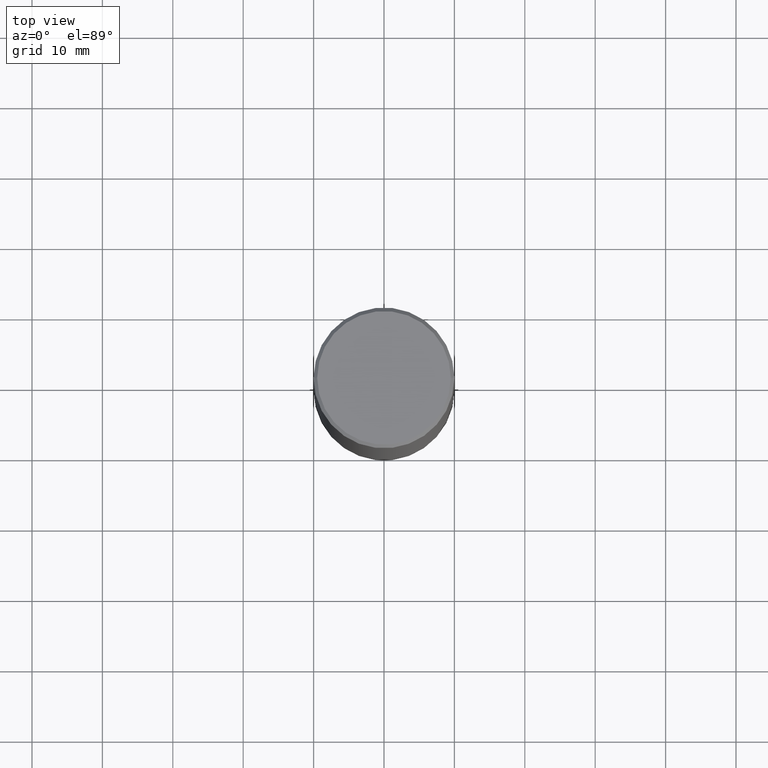
[diagram: clean part render]
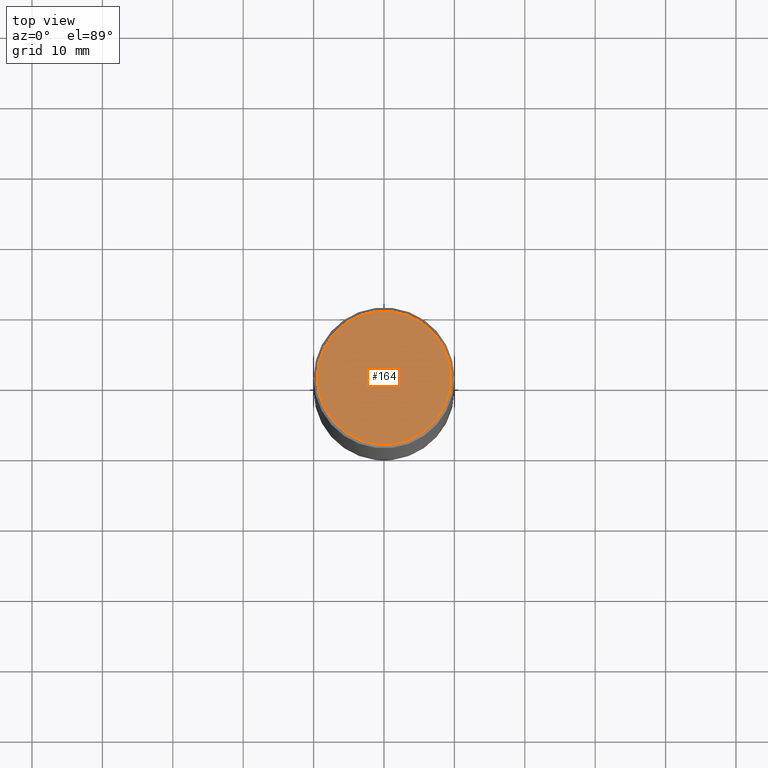
[diagram: same view with one face highlighted and labeled with its STEP entity id]
A machine part, top view. The second image highlights one B-rep face of the part: STEP entity #164.
In plain terms, the highlighted planar face has unit normal (0, -0, -1).
Its self-contained STEP definition (entity closure, byte-faithful):
#6 = PLANE ( 'NONE',  #128 ) ;
#77 = ORIENTED_EDGE ( 'NONE', *, *, #147, .T. ) ;
#119 = DIRECTION ( 'NONE',  ( -1.000000000000000000, 6.982962677686265922E-15, -4.876176775795935793E-29 ) ) ;
#125 = DIRECTION ( 'NONE',  ( -2.445468806185136597E-29, 3.491481338843145583E-15, 1.000000000000000000 ) ) ;
#128 = AXIS2_PLACEMENT_3D ( 'NONE', #129, #183, #119 ) ;
#129 = CARTESIAN_POINT ( 'NONE',  ( 2.609533152651355437E-15, 0.3736999999999996991, -1.302632320080632238E-15 ) ) ;
#147 = EDGE_CURVE ( 'NONE', #285, #255, #256, .T. ) ;
#151 = CARTESIAN_POINT ( 'NONE',  ( -1.043851414335219820E-46, 1.490343170380447200E-32, 4.268512490100411279E-18 ) ) ;
#164 = ADVANCED_FACE ( 'NONE', ( #241 ), #6, .F. ) ;
#183 = DIRECTION ( 'NONE',  ( 2.438088387897960049E-29, -3.491481338843145188E-15, -1.000000000000000000 ) ) ;
#187 = CARTESIAN_POINT ( 'NONE',  ( -1.043851414335219820E-46, 1.490343170380447200E-32, 4.268512490100411279E-18 ) ) ;
#194 = CARTESIAN_POINT ( 'NONE',  ( -0.3736999999999996991, 2.644447966039787086E-15, 4.268512490082039448E-18 ) ) ;
#206 = AXIS2_PLACEMENT_3D ( 'NONE', #187, #289, #219 ) ;
#219 = DIRECTION ( 'NONE',  ( 1.000000000000000000, -6.982962677686266711E-15, 4.876212485538979042E-29 ) ) ;
#241 = FACE_OUTER_BOUND ( 'NONE', #297, .T. ) ;
#255 = VERTEX_POINT ( 'NONE', #284 ) ;
#256 = CIRCLE ( 'NONE', #321, 0.3736999999999996991 ) ;
#258 = EDGE_CURVE ( 'NONE', #255, #285, #342, .T. ) ;
#261 = DIRECTION ( 'NONE',  ( 1.000000000000000000, -6.982962677686266711E-15, 4.876212485538979042E-29 ) ) ;
#284 = CARTESIAN_POINT ( 'NONE',  ( 0.3736999999999996991, -2.667287895133366387E-15, 4.268512490118863228E-18 ) ) ;
#285 = VERTEX_POINT ( 'NONE', #194 ) ;
#289 = DIRECTION ( 'NONE',  ( -2.445468806185136597E-29, 3.491481338843145583E-15, 1.000000000000000000 ) ) ;
#297 = EDGE_LOOP ( 'NONE', ( #77, #334 ) ) ;
#321 = AXIS2_PLACEMENT_3D ( 'NONE', #151, #125, #261 ) ;
#334 = ORIENTED_EDGE ( 'NONE', *, *, #258, .T. ) ;
#342 = CIRCLE ( 'NONE', #206, 0.3736999999999996991 ) ;